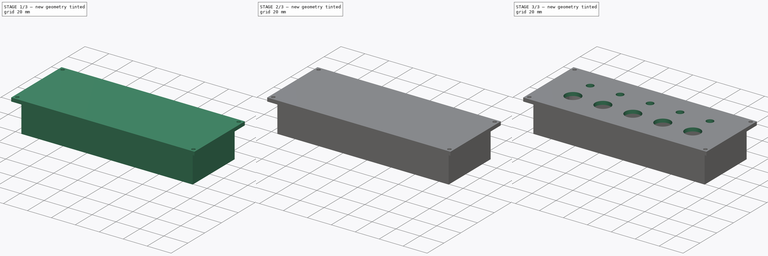
[diagram: build sequence overview — one tinted view per stage of 3, left to right]
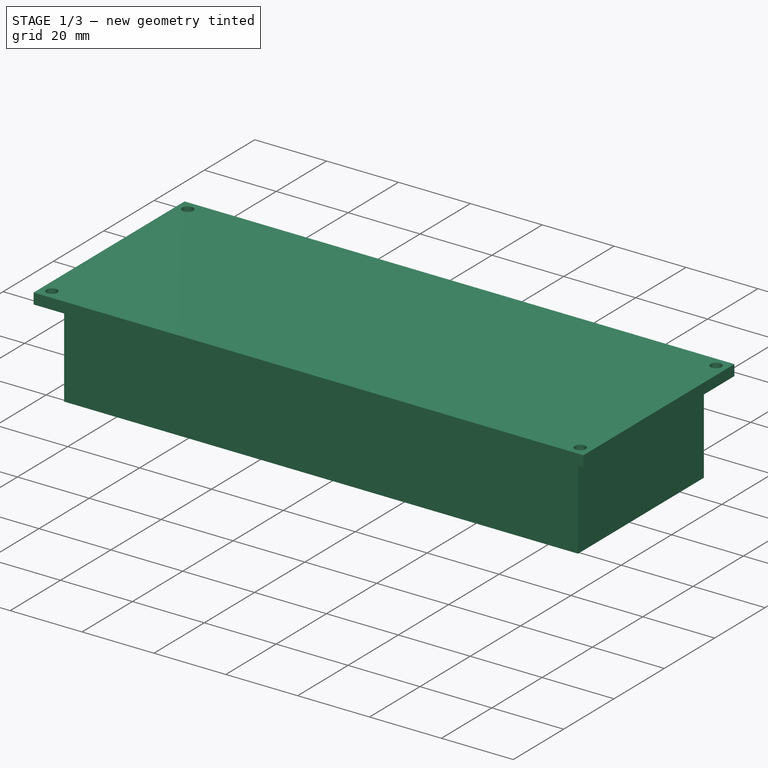
[diagram: stage 1 of 3 — iso view after this stage's code; geometry added in this stage tinted green]
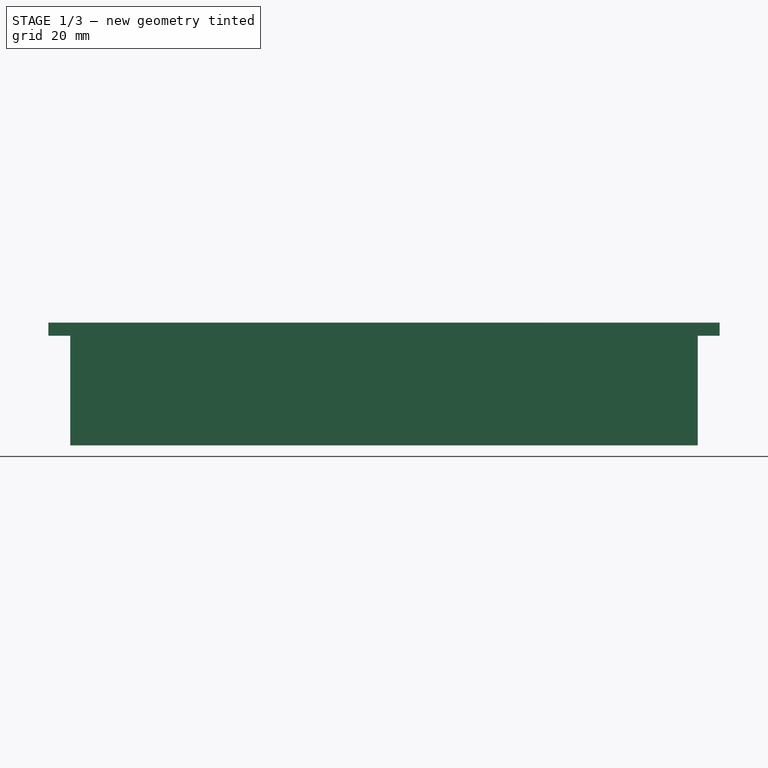
[diagram: stage 1 of 3 — front view after this stage's code; geometry added in this stage tinted green]
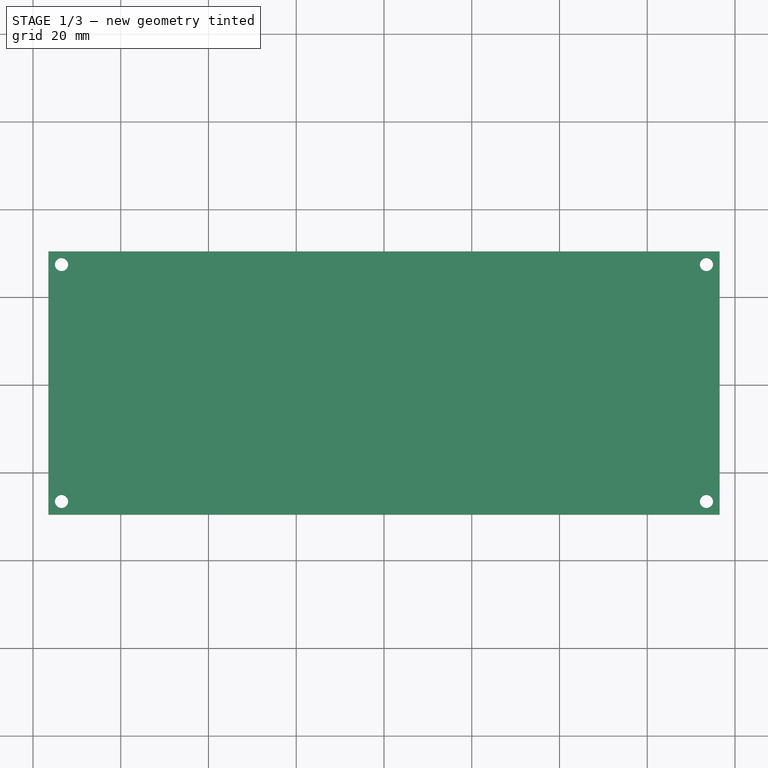
[diagram: stage 1 of 3 — top view after this stage's code; geometry added in this stage tinted green]
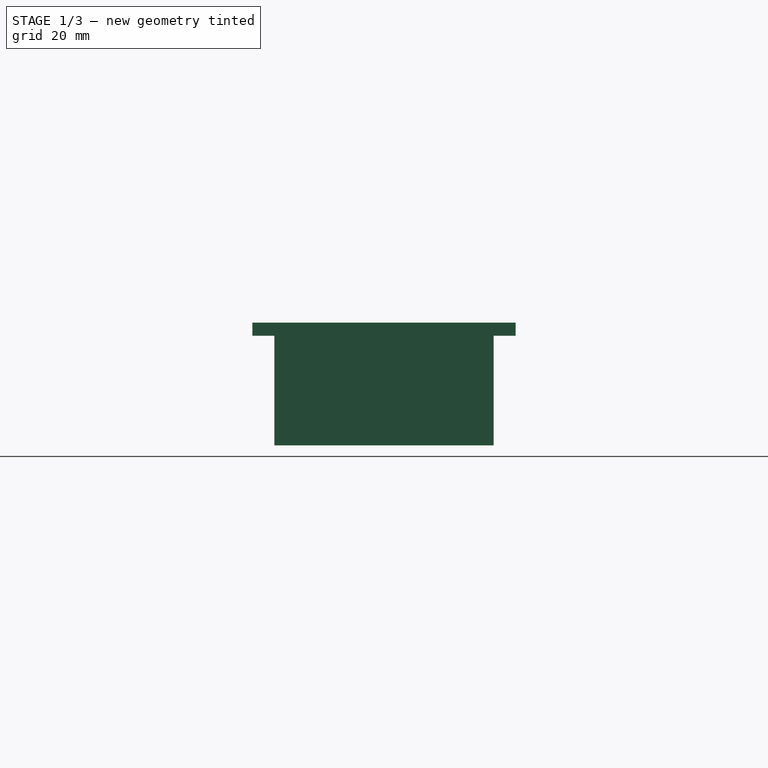
[diagram: stage 1 of 3 — right view after this stage's code; geometry added in this stage tinted green]
FCSTD DOCUMENT  (FreeCAD 0.20R29603 (Git))
Label: module-1
License: All rights reserved
LicenseURL: http://en.wikipedia.org/wiki/All_rights_reserved
objects: Sketcher::SketchObject×6, PartDesign::Mirrored×4, PartDesign::Pad×3, PartDesign::Pocket×3, PartDesign::MultiTransform×2, PartDesign::Body×1
note: 25 computed .brp shape members not serialized (recipe doc carries the construction recipe); baked Part::Feature solids carry a one-line shape summary decoded from their .brp

FEATURE [Sketcher::SketchObject] Sketch
  FullyConstrained = true
  MapMode = 5
  Support = -> [XY_Plane]
  sketch-geometry (4):
    g0: LineSegment StartX=-76.5 StartY=30 StartZ=0 EndX=76.5 EndY=30 EndZ=0
    g1: LineSegment StartX=76.5 StartY=30 StartZ=0 EndX=76.5 EndY=-30 EndZ=0
    g2: LineSegment StartX=76.5 StartY=-30 StartZ=0 EndX=-76.5 EndY=-30 EndZ=0
    g3: LineSegment StartX=-76.5 StartY=-30 StartZ=0 EndX=-76.5 EndY=30 EndZ=0
  constraints (10):
    c: Coincident(g0,g1)
    c: Coincident(g1,g2)
    c: Coincident(g2,g3)
    c: Coincident(g3,g0)
    c: DistanceX(g0,g0) = 153
    c: DistanceY(g3,g3) = 60
    c: Vertical(g1)
    c: Horizontal(g2)
    c: Symmetric(g0,g0,g-2)
    c: Symmetric(g0,g2,g-1)
FEATURE [PartDesign::Pad] Pad
  Direction = (0,0,1)
  Length = 3
  Length2 = 10
  Profile = -> Sketch
  ReferenceAxis = -> Sketch [N_Axis]
  Type = 0
FEATURE [Sketcher::SketchObject] Sketch002
  FullyConstrained = true
  MapMode = 5
  Placement = pos=(0,0,0) rot=(1,0,0;3.14159rad)
  Support = -> [Pad]
  sketch-geometry (8):
    g0: LineSegment StartX=-69.5 StartY=23 StartZ=0 EndX=69.5 EndY=23 EndZ=0
    g1: LineSegment StartX=69.5 StartY=23 StartZ=0 EndX=69.5 EndY=-23 EndZ=0
    g2: LineSegment StartX=69.5 StartY=-23 StartZ=0 EndX=-69.5 EndY=-23 EndZ=0
    g3: LineSegment StartX=-69.5 StartY=-23 StartZ=0 EndX=-69.5 EndY=23 EndZ=0
    g4: LineSegment StartX=-71.5 StartY=25 StartZ=0 EndX=71.5 EndY=25 EndZ=0
    g5: LineSegment StartX=71.5 StartY=25 StartZ=0 EndX=71.5 EndY=-25 EndZ=0
    g6: LineSegment StartX=71.5 StartY=-25 StartZ=0 EndX=-71.5 EndY=-25 EndZ=0
    g7: LineSegment StartX=-71.5 StartY=-25 StartZ=0 EndX=-71.5 EndY=25 EndZ=0
  constraints (23):
    c: Coincident(g0,g1)
    c: Coincident(g1,g2)
    c: Coincident(g2,g3)
    c: Coincident(g3,g0)
    c: Horizontal(g0)
    c: Horizontal(g2)
    c: Vertical(g1)
    c: Vertical(g3)
    c: DistanceX(g0,g0) = 139
    c: DistanceY(g2,g0) = 46
    c: Symmetric(g0,g1,g-1)
    c: Coincident(g4,g5)
    c: Coincident(g5,g6)
    c: Coincident(g6,g7)
    c: Coincident(g7,g4)
    c: Horizontal(g4)
    c: Horizontal(g6)
    c: Vertical(g5)
    c: Vertical(g7)
    c: DistanceY(g0,g4) = 2
    c: DistanceX(g4,g0) = 2
    c: DistanceX(g0,g4) = 2
    c: DistanceY(g6,g2) = 2
FEATURE [PartDesign::Pad] Pad001
  BaseFeature = -> Pad
  Direction = (0,0,-1)
  Length = 25
  Length2 = 10
  Profile = -> Sketch002
  ReferenceAxis = -> Sketch002 [N_Axis]
  Type = 0
FEATURE [Sketcher::SketchObject] Sketch003
  ExternalGeometry = -> [Pad001]
  FullyConstrained = true
  MapMode = 5
  Placement = pos=(0,0,0) rot=(1,0,0;3.14159rad)
  Support = -> [Pad001]
  sketch-geometry (4):
    g0: Circle CenterX=-73.5 CenterY=27 CenterZ=0 NormalX=0 NormalY=0 NormalZ=1 AngleXU=0 Radius=1.5
    g1: Circle CenterX=-73.5 CenterY=-27 CenterZ=0 NormalX=0 NormalY=0 NormalZ=1 AngleXU=0 Radius=1.5
    g2: Circle CenterX=73.5 CenterY=-27 CenterZ=0 NormalX=0 NormalY=0 NormalZ=1 AngleXU=0 Radius=1.5
    g3: Circle CenterX=73.5 CenterY=27 CenterZ=0 NormalX=0 NormalY=0 NormalZ=1 AngleXU=0 Radius=1.5
  constraints (12):
    c: Diameter(g0) = 3
    c: Equal(g3,g2)
    c: Equal(g2,g1)
    c: Equal(g1,g0)
    c: Distance(g1,g-5) = 3
    c: Distance(g1,g-3) = 3
    c: Distance(g2,g-5) = 3
    c: Distance(g2,g-6) = 3
    c: Distance(g3,g-6) = 3
    c: Distance(g3,g-4) = 3
    c: Distance(g0,g-4) = 3
    c: Distance(g0,g-3) = 3
FEATURE [PartDesign::Pocket] Pocket
  BaseFeature = -> Pad001
  Direction = (0,0,1)
  Length = 5
  Length2 = 5
  Profile = -> Sketch003
  ReferenceAxis = -> Sketch003 [N_Axis]
  Type = 1
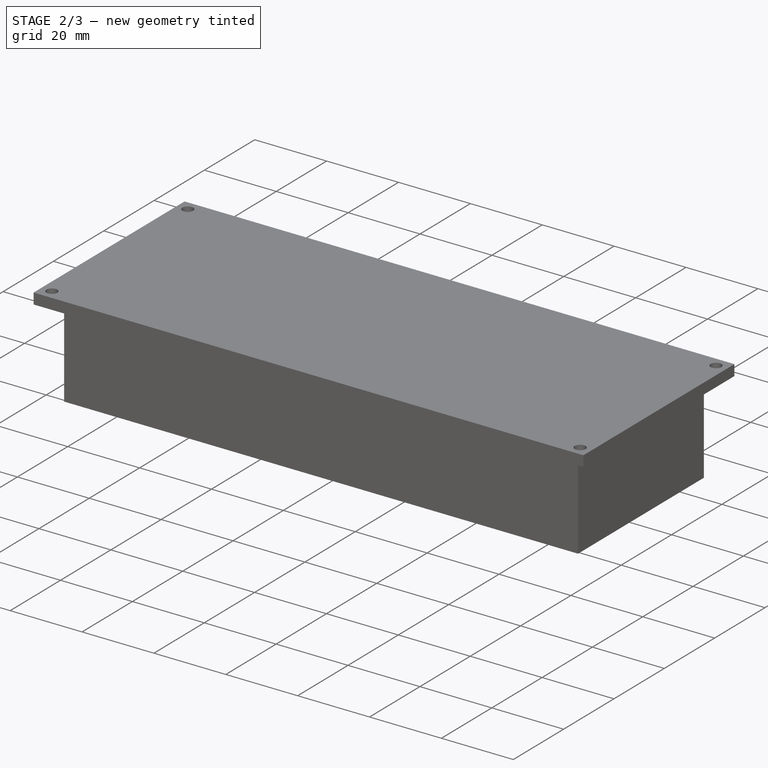
[diagram: stage 2 of 3 — iso view after this stage's code; geometry added in this stage tinted green]
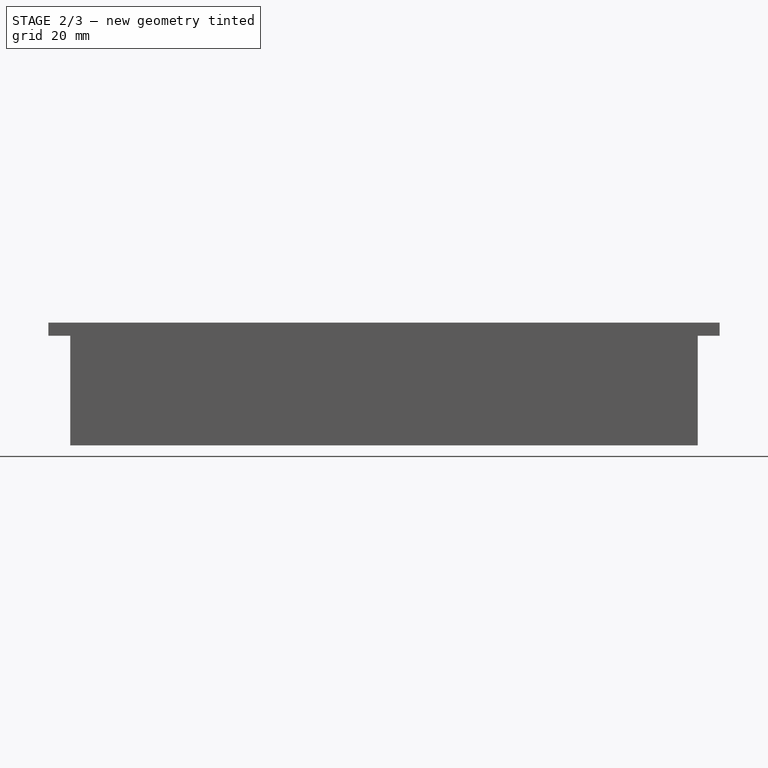
[diagram: stage 2 of 3 — front view after this stage's code; geometry added in this stage tinted green]
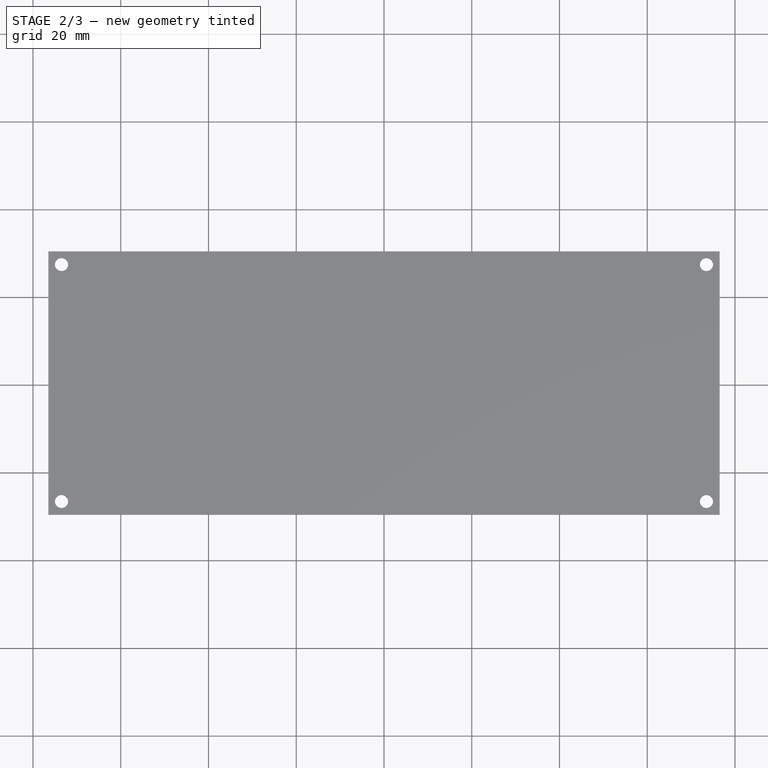
[diagram: stage 2 of 3 — top view after this stage's code; geometry added in this stage tinted green]
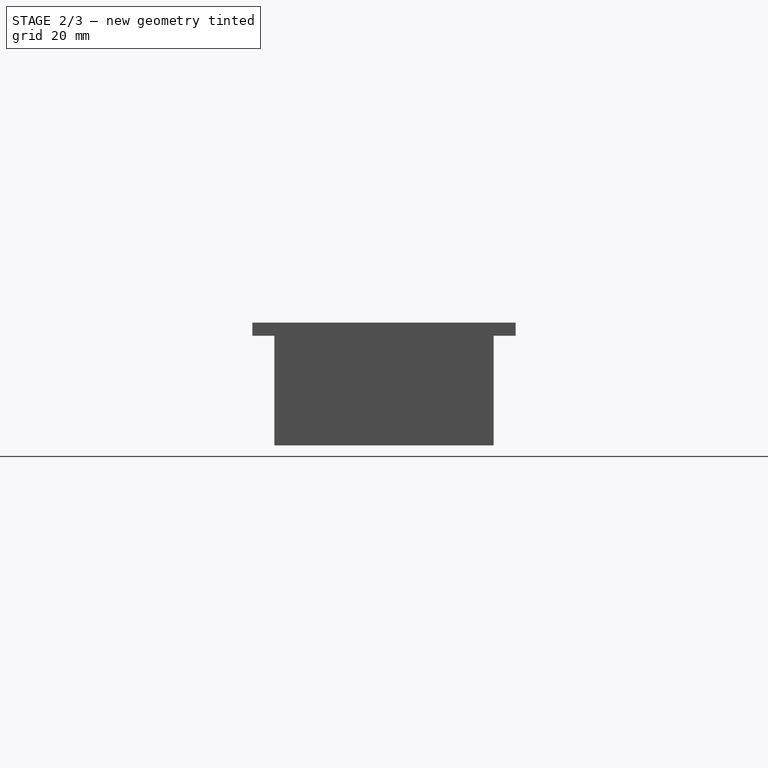
[diagram: stage 2 of 3 — right view after this stage's code; geometry added in this stage tinted green]
FEATURE [Sketcher::SketchObject] Sketch004
  ExternalGeometry = -> [Pocket]
  FullyConstrained = true
  MapMode = 5
  Placement = pos=(0,0,0) rot=(1,0,0;3.14159rad)
  Support = -> [Pocket]
  sketch-geometry (3):
    g0: LineSegment StartX=-69.5 StartY=23 StartZ=0 EndX=-61.5 EndY=23 EndZ=0
    g1: LineSegment StartX=-69.5 StartY=23 StartZ=0 EndX=-69.5 EndY=15 EndZ=0
    g2: ArcOfCircle CenterX=-69.5 CenterY=23 CenterZ=0 NormalX=0 NormalY=0 NormalZ=1 AngleXU=0 Radius=8 StartAngle=4.71239 EndAngle=6.28319
  constraints (8):
    c: Horizontal(g0)
    c: Coincident(g1,g0)
    c: Coincident(g2,g0)
    c: Coincident(g2,g0)
    c: Radius(g2) = 8
    c: Coincident(g1,g2)
    c: Vertical(g1)
    c: Coincident(g0,g-4)
FEATURE [PartDesign::Pad] Pad002
  BaseFeature = -> Pocket
  Direction = (0,0,-1)
  Length = 23
  Length2 = 10
  Profile = -> Sketch004
  ReferenceAxis = -> Sketch004 [N_Axis]
  Type = 0
FEATURE [PartDesign::Mirrored] Mirrored
  MirrorPlane = -> Sketch004 [V_Axis]
FEATURE [PartDesign::Mirrored] Mirrored001
  MirrorPlane = -> Sketch004 [H_Axis]
FEATURE [PartDesign::MultiTransform] MultiTransform
  BaseFeature = -> Pad002
  Originals = -> [Pad002]
  Transformations = -> [Mirrored,Mirrored001]
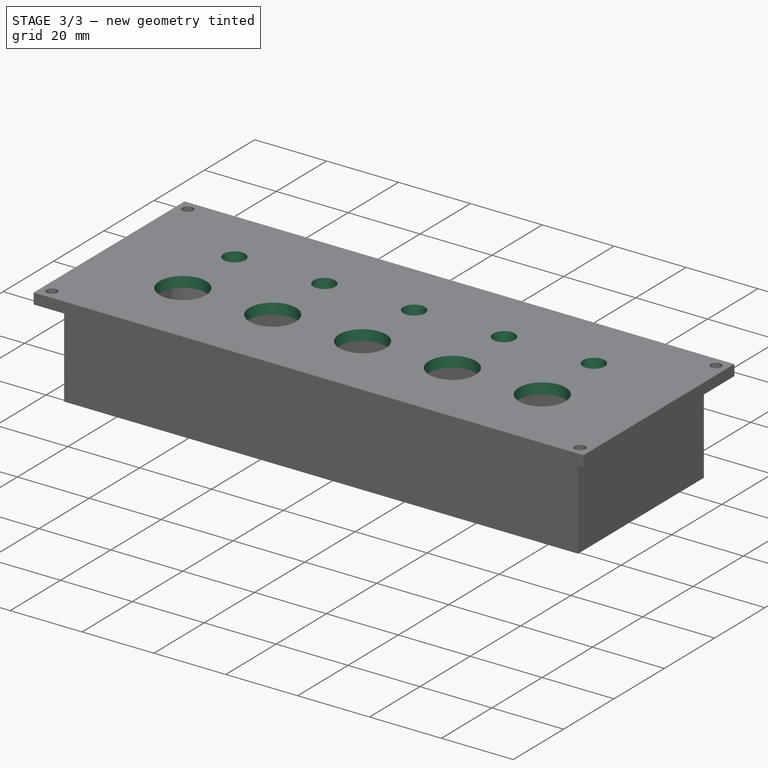
[diagram: stage 3 of 3 — iso view after this stage's code; geometry added in this stage tinted green]
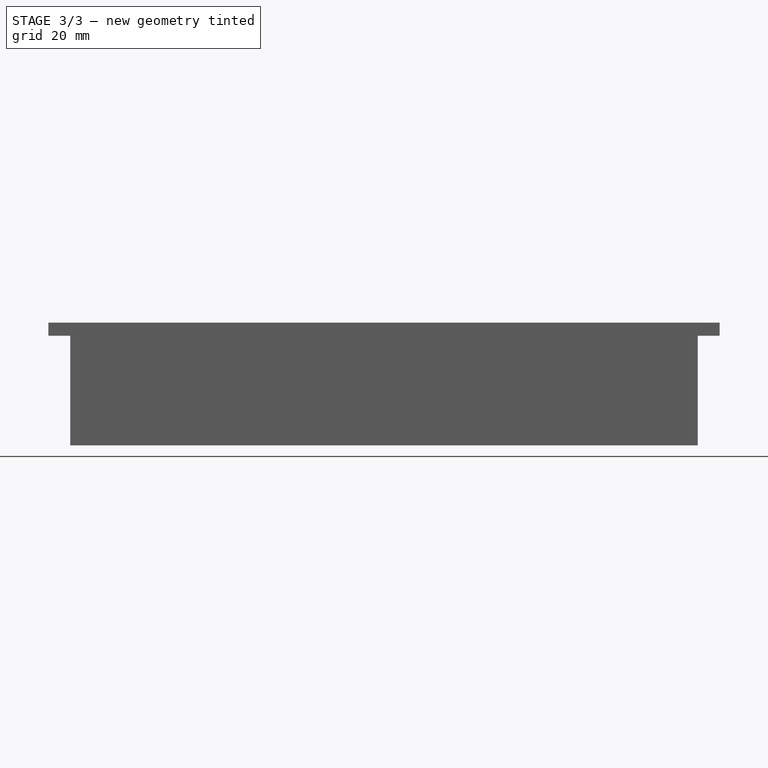
[diagram: stage 3 of 3 — front view after this stage's code; geometry added in this stage tinted green]
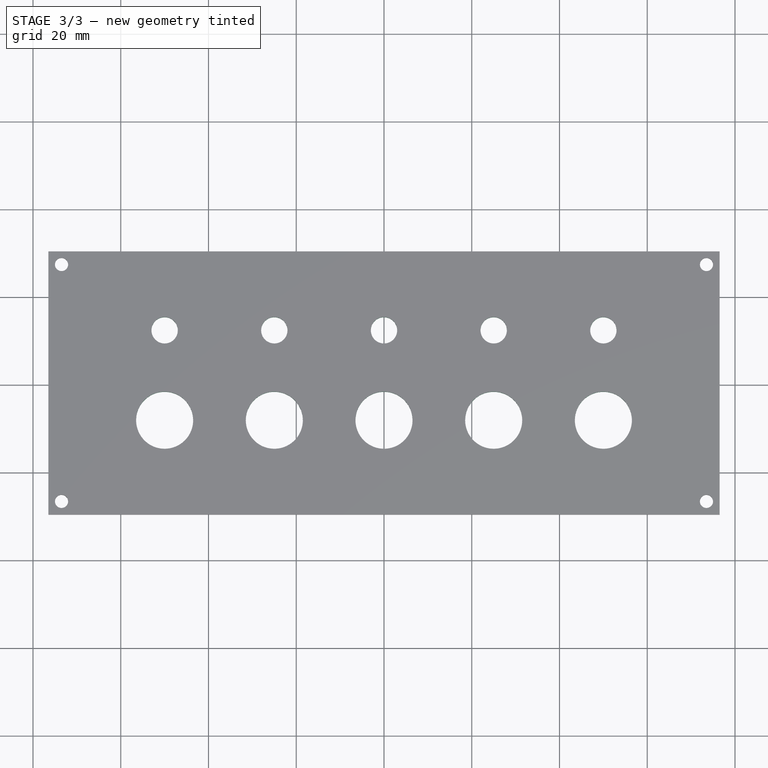
[diagram: stage 3 of 3 — top view after this stage's code; geometry added in this stage tinted green]
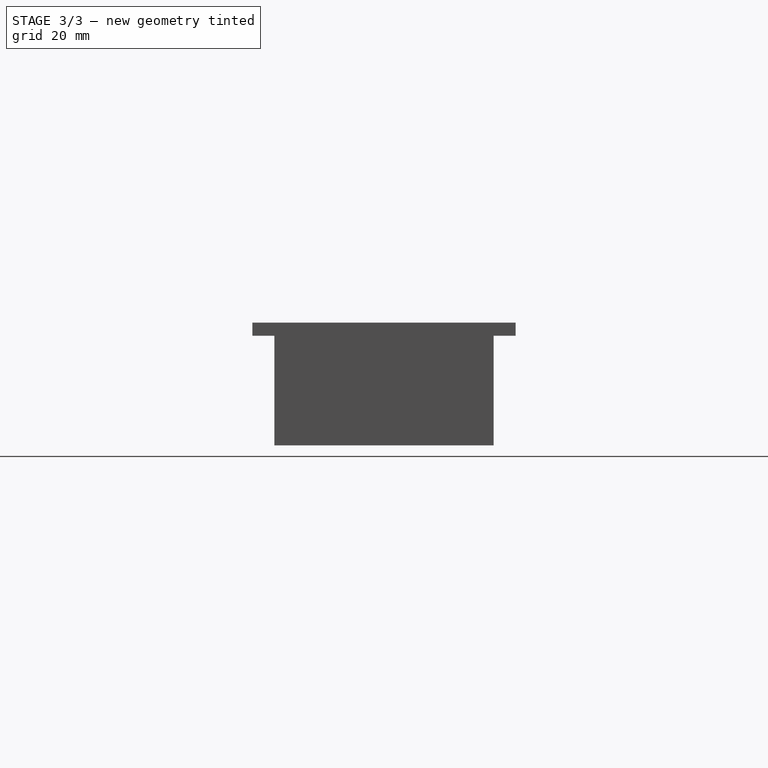
[diagram: stage 3 of 3 — right view after this stage's code; geometry added in this stage tinted green]
FEATURE [Sketcher::SketchObject] Sketch005
  ExternalGeometry = -> [MultiTransform]
  FullyConstrained = true
  MapMode = 5
  Placement = pos=(0,0,-23) rot=(1,0,0;3.14159rad)
  Support = -> [MultiTransform]
  sketch-geometry (1):
    g0: Circle CenterX=-66.5 CenterY=20 CenterZ=0 NormalX=0 NormalY=0 NormalZ=1 AngleXU=0 Radius=2.4
  constraints (3):
    c: Diameter(g0) = 4.8
    c: Distance(g0,g-3) = 3
    c: Distance(g0,g-4) = 3
FEATURE [PartDesign::Pocket] Pocket001
  BaseFeature = -> MultiTransform
  Direction = (0,0,1)
  Length = 10
  Length2 = 5
  Profile = -> Sketch005
  ReferenceAxis = -> Sketch005 [N_Axis]
  Type = 0
FEATURE [PartDesign::Mirrored] Mirrored002
  MirrorPlane = -> Sketch005 [V_Axis]
FEATURE [PartDesign::Mirrored] Mirrored003
  MirrorPlane = -> Sketch005 [H_Axis]
FEATURE [PartDesign::MultiTransform] MultiTransform001
  BaseFeature = -> Pocket001
  Originals = -> [Pocket001]
  Transformations = -> [Mirrored002,Mirrored003]
FEATURE [Sketcher::SketchObject] Sketch006
  ExternalGeometry = -> [MultiTransform001]
  FullyConstrained = true
  MapMode = 5
  Placement = pos=(0,0,3) rot=(0,0,1;0rad)
  Support = -> [MultiTransform001]
  expr: Constraints[21] = .Constraints.ButtonVSpace
  expr: Constraints[22] = .Constraints.ButtonVSpace
  expr: Constraints[23] = .Constraints.ButtonVSpace
  expr: Constraints[24] = .Constraints.ButtonVSpace
  expr: Constraints[25] = .Constraints.LedVSpace
  expr: Constraints[26] = .Constraints.LedVSpace
  expr: Constraints[27] = .Constraints.LedVSpace
  expr: Constraints[28] = .Constraints.LedVSpace
  expr: Constraints[6] = .Constraints.ButtonHSpace
  expr: Constraints[7] = .Constraints.ButtonHSpace
  expr: Constraints[8] = .Constraints.ButtonHSpace
  sketch-geometry (10):
    g0: Circle CenterX=-50 CenterY=-8.5 CenterZ=0 NormalX=0 NormalY=0 NormalZ=1 AngleXU=0 Radius=6.5
    g1: Circle CenterX=-25 CenterY=-8.5 CenterZ=0 NormalX=0 NormalY=0 NormalZ=1 AngleXU=0 Radius=6.5
    g2: Circle CenterX=2e-16 CenterY=-8.5 CenterZ=0 NormalX=0 NormalY=0 NormalZ=1 AngleXU=0 Radius=6.5
    g3: Circle CenterX=25 CenterY=-8.5 CenterZ=0 NormalX=0 NormalY=0 NormalZ=1 AngleXU=0 Radius=6.5
    g4: Circle CenterX=50 CenterY=-8.5 CenterZ=0 NormalX=0 NormalY=0 NormalZ=1 AngleXU=0 Radius=6.5
    g5: Circle CenterX=-50 CenterY=12 CenterZ=0 NormalX=0 NormalY=0 NormalZ=1 AngleXU=0 Radius=3
    g6: Circle CenterX=-25 CenterY=12 CenterZ=0 NormalX=0 NormalY=0 NormalZ=1 AngleXU=0 Radius=3
    g7: Circle CenterX=2e-16 CenterY=12 CenterZ=0 NormalX=0 NormalY=0 NormalZ=1 AngleXU=0 Radius=3
    g8: Circle CenterX=25 CenterY=12 CenterZ=0 NormalX=0 NormalY=0 NormalZ=1 AngleXU=0 Radius=3
    g9: Circle CenterX=50 CenterY=12 CenterZ=0 NormalX=0 NormalY=0 NormalZ=1 AngleXU=0 Radius=3
  constraints (30):
    c: Diameter(g0) = 13  'ButtonDiameter'
    c: Equal(g0,g1)
    c: Equal(g1,g2)
    c: Equal(g2,g3)
    c: Equal(g3,g4)
    c: DistanceX(g0,g1) = 25  'ButtonHSpace'
    c: DistanceX(g1,g2) = 25
    c: DistanceX(g2,g3) = 25
    c: DistanceX(g3,g4) = 25
    c: Diameter(g5) = 6  'LedDiameter'
    c: Equal(g5,g6)
    c: Equal(g6,g7)
    c: Equal(g7,g8)
    c: Equal(g8,g9)
    c: DistanceX(g5,g0) = 0
    c: DistanceX(g6,g1) = 0
    c: DistanceX(g7,g2) = 0
    c: DistanceX(g8,g3) = 0
    c: DistanceX(g9,g4) = 0
    c: Distance(g0,g-4) = 14.5  'ButtonVSpace'
    c: Distance(g0,g-5) = 19.5
    c: Distance(g1,g-4) = 14.5
    c: Distance(g2,g-4) = 14.5
    c: Distance(g3,g-4) = 14.5
    c: Distance(g4,g-4) = 14.5
    c: Distance(g9,g-3) = 11
    c: Distance(g8,g-3) = 11
    c: Distance(g7,g-3) = 11
    c: Distance(g6,g-3) = 11
    c: Distance(g5,g-3) = 11  'LedVSpace'
FEATURE [PartDesign::Pocket] Pocket002
  BaseFeature = -> MultiTransform001
  Direction = (0,0,-1)
  Length = 5
  Length2 = 5
  Profile = -> Sketch006
  ReferenceAxis = -> Sketch006 [N_Axis]
  Type = 1
FEATURE [PartDesign::Body] Body
  Group = -> [Sketch,Pad,Sketch002,Pad001,Sketch003,Pocket,Sketch004,Pad002,MultiTransform,Mirrored,Mirrored001,Sketch005,Pocket001,MultiTransform001,Mirrored002,Mirrored003,Sketch006,Pocket002]
  Origin = -> Origin
  Tip = -> Pocket002
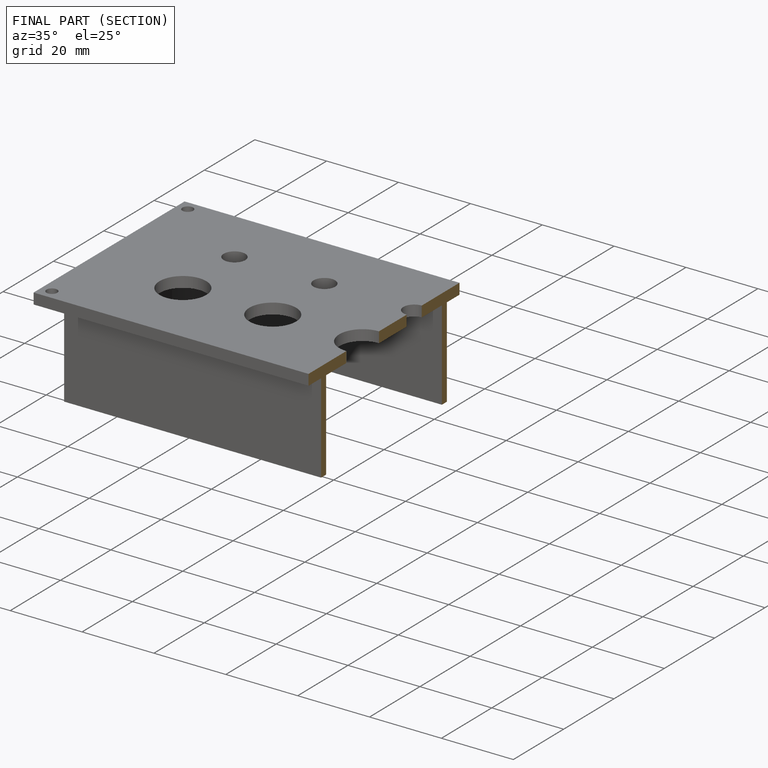
[diagram: finished part — half-section view (interior)]
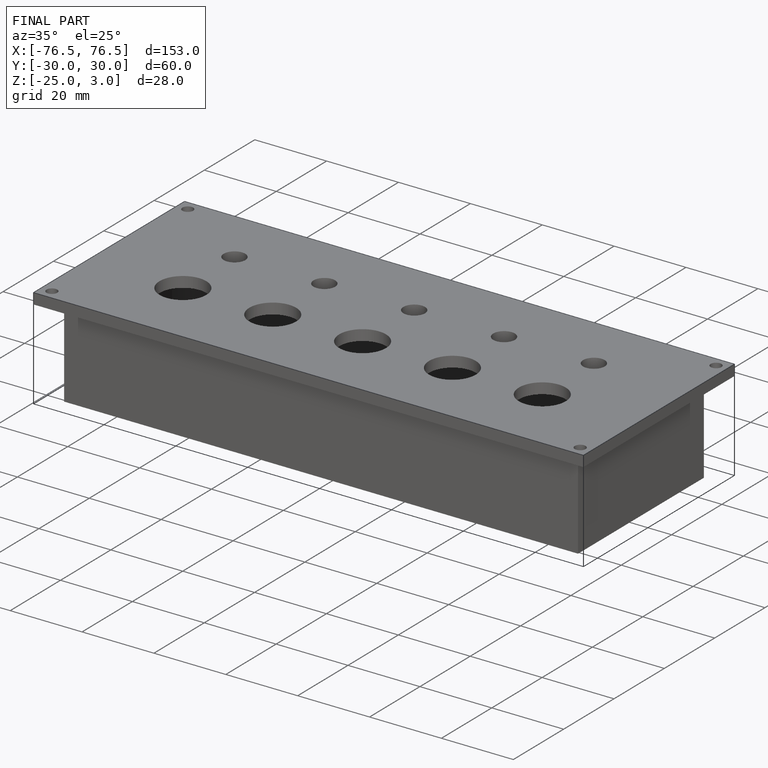
[diagram: finished part — iso view with bounding-box wireframe]
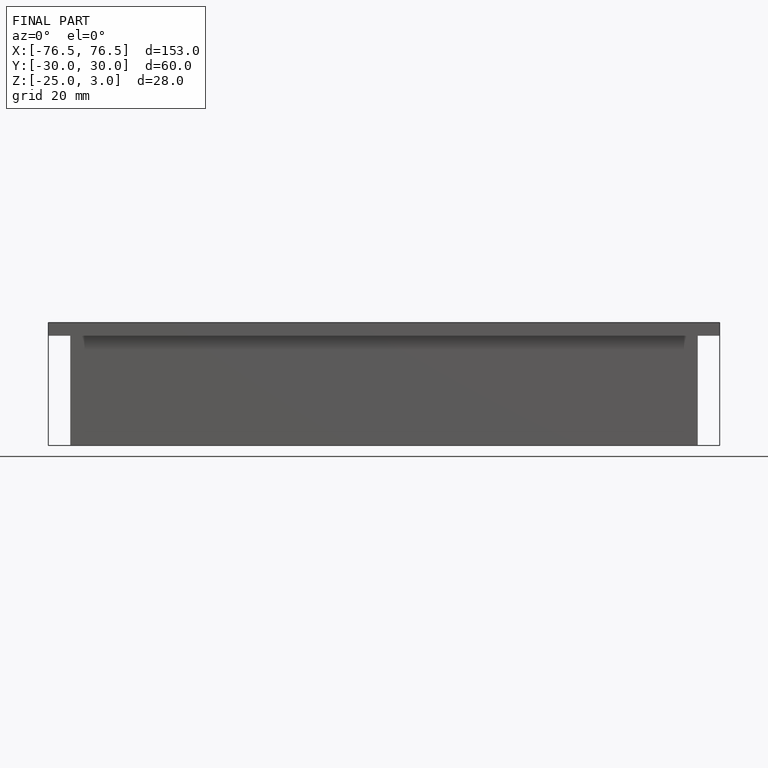
[diagram: finished part — front view with bounding-box wireframe]
